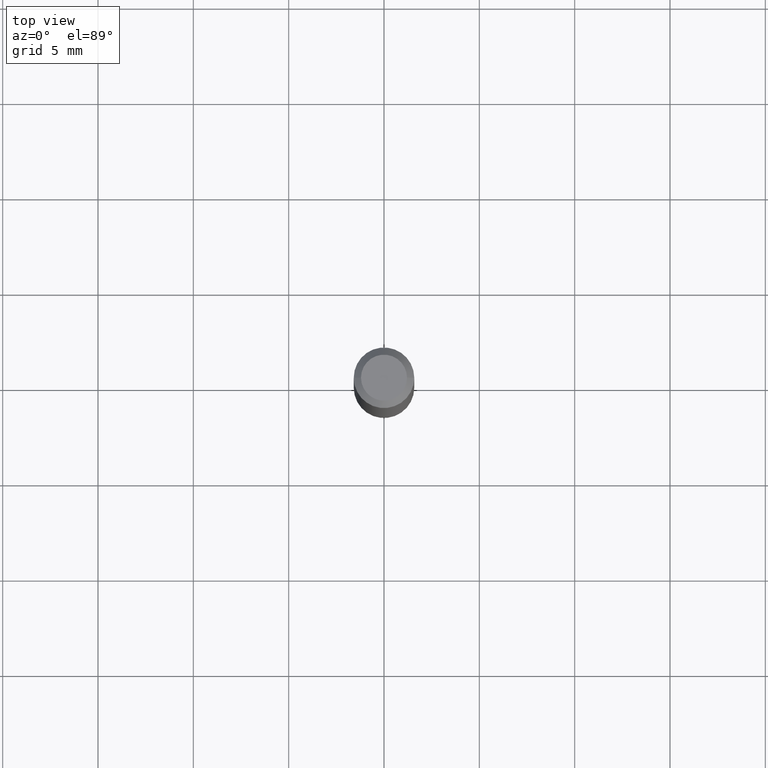
[diagram: clean part render]
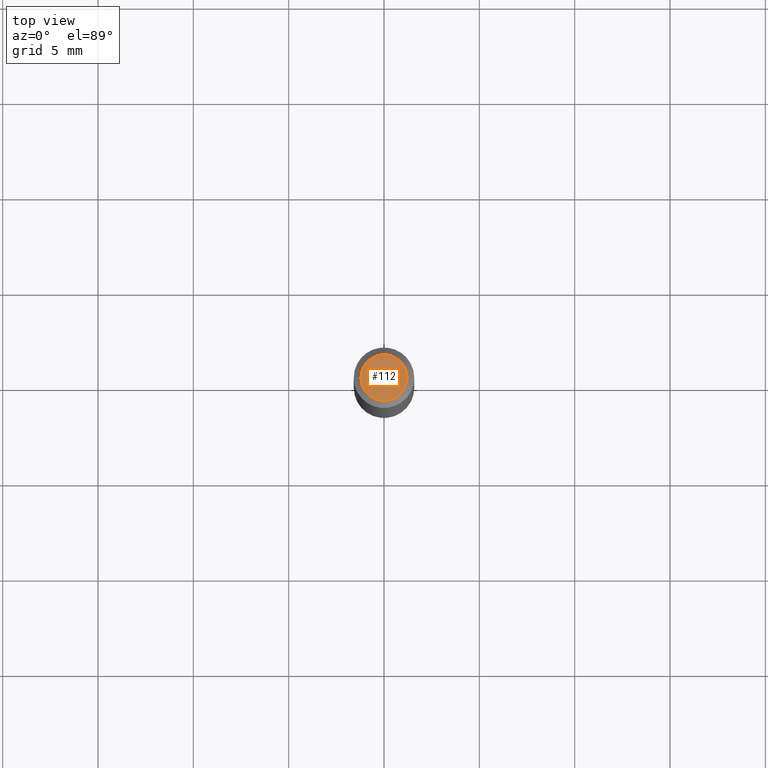
[diagram: same view with one face highlighted and labeled with its STEP entity id]
A machine part, top view. The second image highlights one B-rep face of the part: STEP entity #112.
In plain terms, the highlighted planar face has unit normal (0, -0, -1).
Its self-contained STEP definition (entity closure, byte-faithful):
#6 = ORIENTED_EDGE ( 'NONE', *, *, #372, .T. ) ;
#12 = CARTESIAN_POINT ( 'NONE',  ( 3.316907271900976096E-16, 0.04749999999999999362, -2.904368096790510281E-16 ) ) ;
#43 = PLANE ( 'NONE',  #262 ) ;
#82 = AXIS2_PLACEMENT_3D ( 'NONE', #197, #91, #89 ) ;
#84 = DIRECTION ( 'NONE',  ( -2.445468806185136597E-29, 3.491481338843145583E-15, 1.000000000000000000 ) ) ;
#89 = DIRECTION ( 'NONE',  ( 1.000000000000000000, -6.982962677686267499E-15, 4.852736867747366768E-29 ) ) ;
#91 = DIRECTION ( 'NONE',  ( -2.445468806185136597E-29, 3.491481338843145583E-15, 1.000000000000000000 ) ) ;
#92 = EDGE_CURVE ( 'NONE', #324, #429, #293, .T. ) ;
#112 = ADVANCED_FACE ( 'NONE', ( #370 ), #43, .F. ) ;
#162 = ORIENTED_EDGE ( 'NONE', *, *, #92, .T. ) ;
#188 = CIRCLE ( 'NONE', #82, 0.04749999999999999362 ) ;
#197 = CARTESIAN_POINT ( 'NONE',  ( 6.093689898318465335E-45, -8.700174179635472181E-31, -2.491828921680032634E-16 ) ) ;
#206 = EDGE_LOOP ( 'NONE', ( #6, #162 ) ) ;
#262 = AXIS2_PLACEMENT_3D ( 'NONE', #12, #327, #443 ) ;
#266 = CARTESIAN_POINT ( 'NONE',  ( 6.093689898318465335E-45, -8.700174179635472181E-31, -2.491828921680032634E-16 ) ) ;
#293 = CIRCLE ( 'NONE', #446, 0.04749999999999999362 ) ;
#318 = CARTESIAN_POINT ( 'NONE',  ( 0.04749999999999999362, -4.035134999187582567E-16, -2.491828921680006996E-16 ) ) ;
#324 = VERTEX_POINT ( 'NONE', #318 ) ;
#327 = DIRECTION ( 'NONE',  ( 2.438088387897960049E-29, -3.491481338843145188E-15, -1.000000000000000000 ) ) ;
#336 = DIRECTION ( 'NONE',  ( 1.000000000000000000, -6.982962677686267499E-15, 4.852736867747366768E-29 ) ) ;
#356 = CARTESIAN_POINT ( 'NONE',  ( -0.04749999999999999362, 3.578768372314206562E-16, -2.491828921680056300E-16 ) ) ;
#370 = FACE_OUTER_BOUND ( 'NONE', #206, .T. ) ;
#372 = EDGE_CURVE ( 'NONE', #429, #324, #188, .T. ) ;
#429 = VERTEX_POINT ( 'NONE', #356 ) ;
#443 = DIRECTION ( 'NONE',  ( -1.000000000000000000, 6.982962677686265922E-15, -4.876176775795935793E-29 ) ) ;
#446 = AXIS2_PLACEMENT_3D ( 'NONE', #266, #84, #336 ) ;